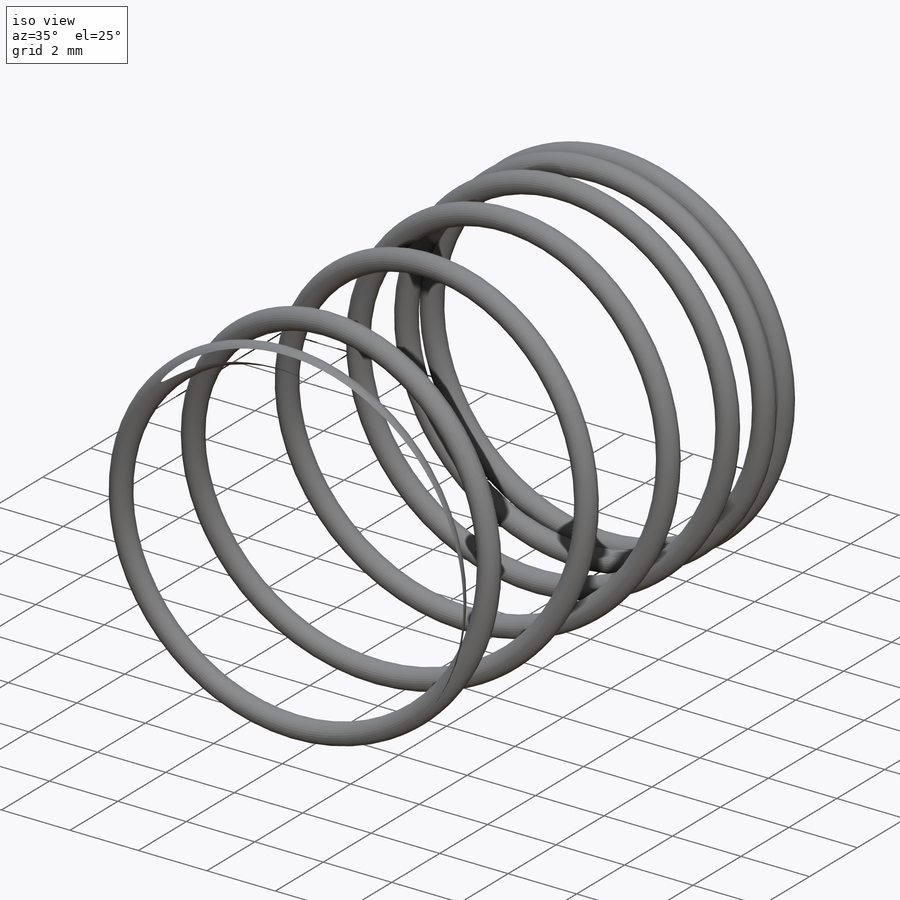
[diagram: iso view]
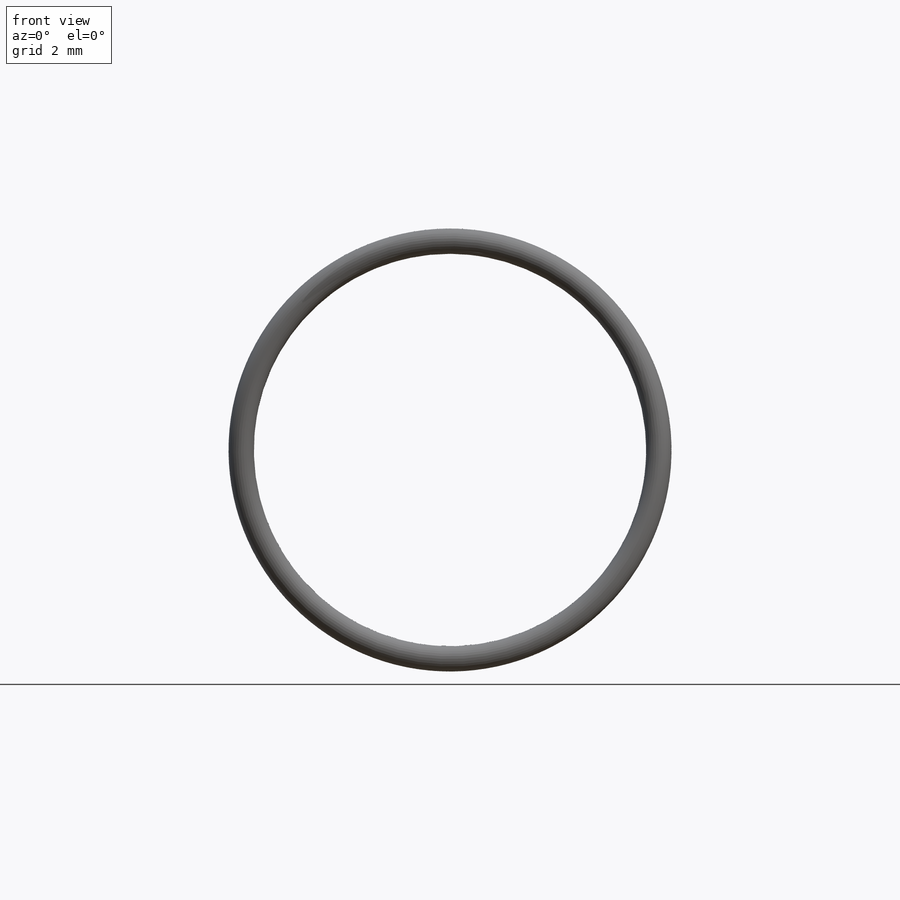
[diagram: front view]
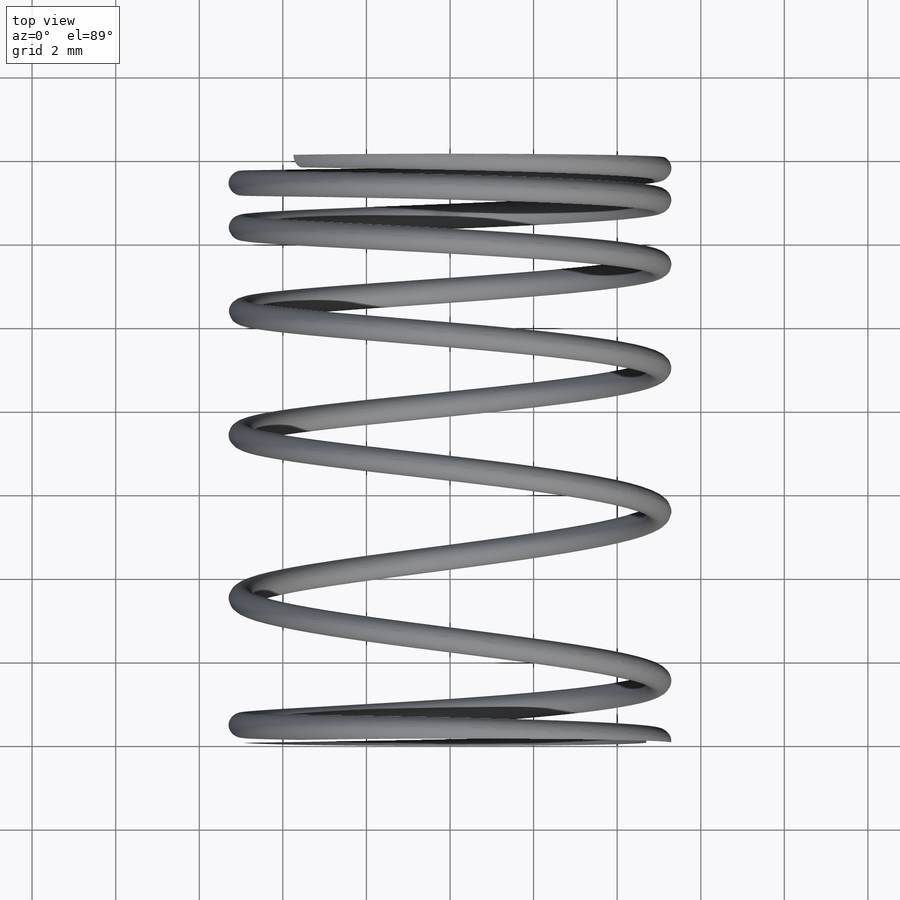
[diagram: top view]
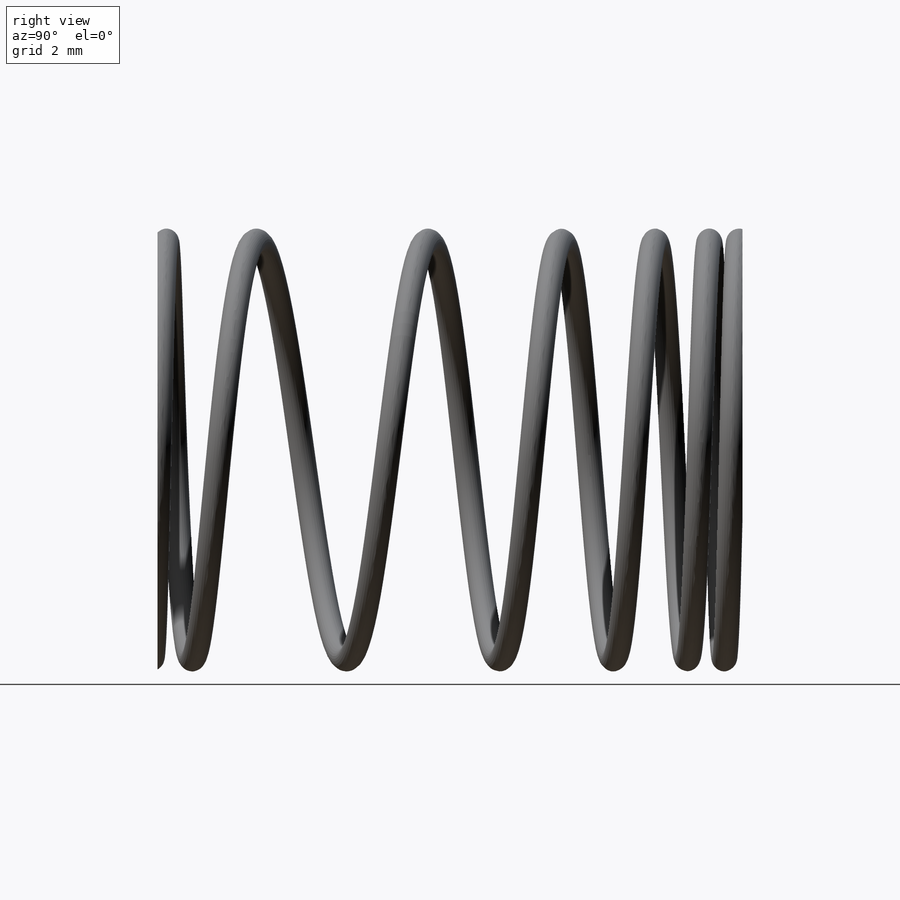
[diagram: right view]
SOLIDWORKS PART (.sldprt)
format: sldprt  version: not decoded by parser v0  size: 1,221,632 bytes
history: native  units: mm
features: plane x5, sketch x4, material x1, helix x1, sweep x1, cut_extrude x1 (+10 scaffold rows collapsed)
feature tree (23):
  scaffold x10  (default folders/planes/origin — collapsed)
  material  "Литая легированная сталь"
  plane  "Спереди"
  plane  "Сверху"
  plane  "Справа"
  sketch  "Эскиз1"  dims[D1=10.0mm]
  helix  "Спираль1"  Pitch=0.7mm
  plane  "Плоскость1"
  sketch  "Эскиз2"  dims[D1=0.6mm]
  sweep  "По траектории1"
  sketch  "Эскиз5"  dims[D1=14.0mm D2=3.0mm D3=14.0mm]
  cut_extrude  "Вырез-Вытянуть1"  Depth=10mm
  plane  "Плоскость2"
  sketch  "Эскиз6"
decode coverage: 5 of 7 modeling features carry decoded parameters
note: suppression state not decoded; provenance and decode notes live in map.json
